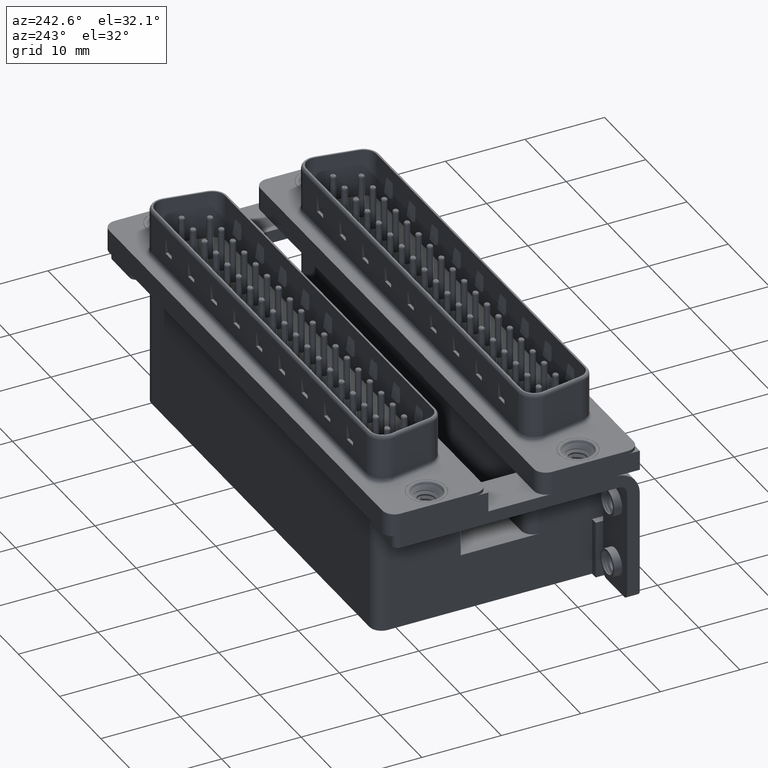
[diagram: clean part render]
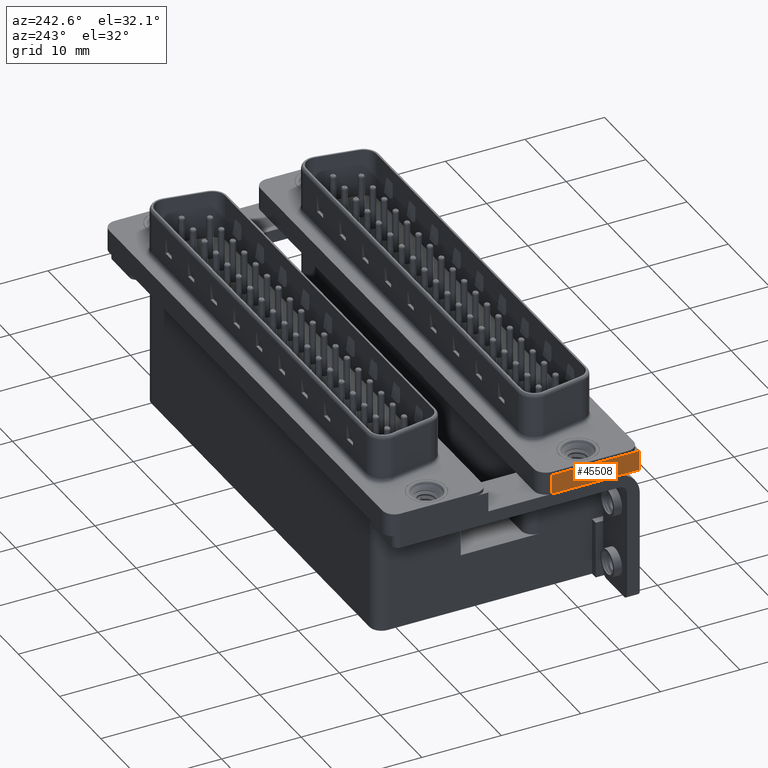
[diagram: same view with one face highlighted and labeled with its STEP entity id]
A machine part, auxiliary view. The second image highlights one B-rep face of the part: STEP entity #45508.
In plain terms, the highlighted planar face has unit normal (-1, 0, 0).
Its self-contained STEP definition (entity closure, byte-faithful):
#982 = CARTESIAN_POINT ( 'NONE',  ( -2.909999999999999254, -6.274999999999999467, -2.500000000000000000 ) ) ;
#1340 = VECTOR ( 'NONE', #26255, 1000.000000000000000 ) ;
#1670 = DIRECTION ( 'NONE',  ( -1.000000000000000000, 0.0000000000000000000, 0.0000000000000000000 ) ) ;
#2169 = LINE ( 'NONE', #51481, #40325 ) ;
#5317 = CARTESIAN_POINT ( 'NONE',  ( -2.909999999999999254, 4.775000000000001243, -2.500000000000000000 ) ) ;
#7370 = CARTESIAN_POINT ( 'NONE',  ( -2.909999999999999254, -6.274999999999999467, 0.0000000000000000000 ) ) ;
#10482 = EDGE_CURVE ( 'NONE', #52221, #43951, #34345, .T. ) ;
#14043 = PLANE ( 'NONE',  #46997 ) ;
#14097 = CARTESIAN_POINT ( 'NONE',  ( -2.909999999999999254, -6.274999999999999467, 0.0000000000000000000 ) ) ;
#16431 = EDGE_CURVE ( 'NONE', #25228, #43951, #44296, .T. ) ;
#18104 = DIRECTION ( 'NONE',  ( 0.0000000000000000000, 0.0000000000000000000, 1.000000000000000000 ) ) ;
#18908 = FACE_OUTER_BOUND ( 'NONE', #33092, .T. ) ;
#25228 = VERTEX_POINT ( 'NONE', #37519 ) ;
#26255 = DIRECTION ( 'NONE',  ( 0.0000000000000000000, 0.0000000000000000000, 1.000000000000000000 ) ) ;
#29601 = DIRECTION ( 'NONE',  ( -0.0000000000000000000, -1.000000000000000000, -0.0000000000000000000 ) ) ;
#31962 = VECTOR ( 'NONE', #52377, 1000.000000000000000 ) ;
#32996 = EDGE_CURVE ( 'NONE', #34566, #52221, #49747, .T. ) ;
#33092 = EDGE_LOOP ( 'NONE', ( #51760, #44029, #33784, #51091 ) ) ;
#33784 = ORIENTED_EDGE ( 'NONE', *, *, #32996, .T. ) ;
#34345 = LINE ( 'NONE', #50732, #1340 ) ;
#34566 = VERTEX_POINT ( 'NONE', #5317 ) ;
#37519 = CARTESIAN_POINT ( 'NONE',  ( -2.909999999999999254, 4.775000000000001243, 0.0000000000000000000 ) ) ;
#38144 = CARTESIAN_POINT ( 'NONE',  ( -2.909999999999999254, -6.274999999999999467, -2.500000000000000000 ) ) ;
#40325 = VECTOR ( 'NONE', #51741, 1000.000000000000000 ) ;
#43951 = VERTEX_POINT ( 'NONE', #14097 ) ;
#44029 = ORIENTED_EDGE ( 'NONE', *, *, #49866, .F. ) ;
#44296 = LINE ( 'NONE', #7370, #31962 ) ;
#45508 = ADVANCED_FACE ( 'NONE', ( #18908 ), #14043, .T. ) ;
#46997 = AXIS2_PLACEMENT_3D ( 'NONE', #47466, #1670, #18104 ) ;
#47466 = CARTESIAN_POINT ( 'NONE',  ( -2.909999999999999254, -6.274999999999999467, -2.500000000000000000 ) ) ;
#48004 = VECTOR ( 'NONE', #29601, 1000.000000000000000 ) ;
#49747 = LINE ( 'NONE', #982, #48004 ) ;
#49866 = EDGE_CURVE ( 'NONE', #34566, #25228, #2169, .T. ) ;
#50732 = CARTESIAN_POINT ( 'NONE',  ( -2.909999999999999254, -6.274999999999999467, -2.500000000000000000 ) ) ;
#51091 = ORIENTED_EDGE ( 'NONE', *, *, #10482, .T. ) ;
#51481 = CARTESIAN_POINT ( 'NONE',  ( -2.909999999999999254, 4.775000000000001243, -2.500000000000000000 ) ) ;
#51741 = DIRECTION ( 'NONE',  ( 0.0000000000000000000, 0.0000000000000000000, 1.000000000000000000 ) ) ;
#51760 = ORIENTED_EDGE ( 'NONE', *, *, #16431, .F. ) ;
#52221 = VERTEX_POINT ( 'NONE', #38144 ) ;
#52377 = DIRECTION ( 'NONE',  ( -0.0000000000000000000, -1.000000000000000000, -0.0000000000000000000 ) ) ;